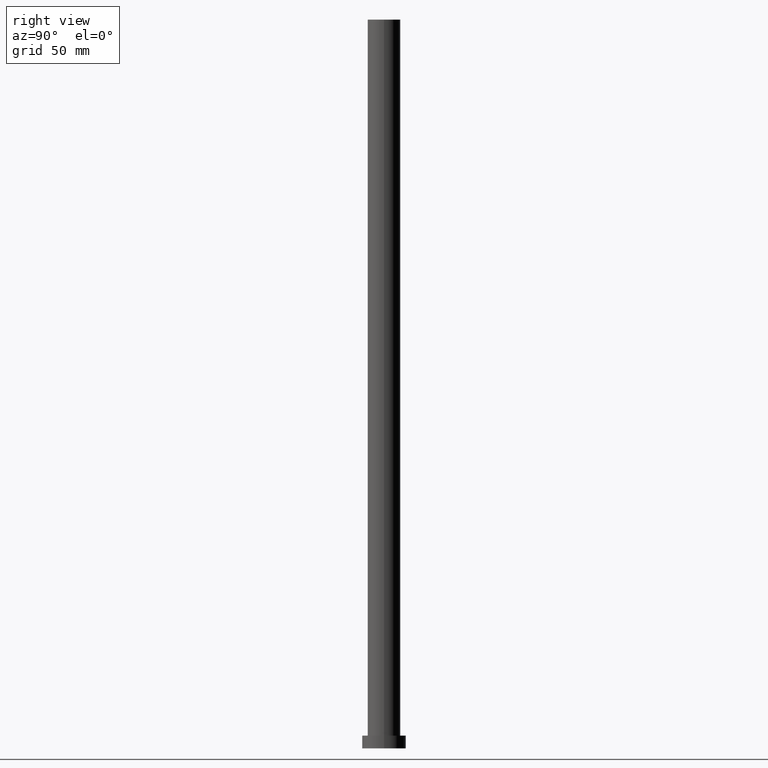
[diagram: clean part render]
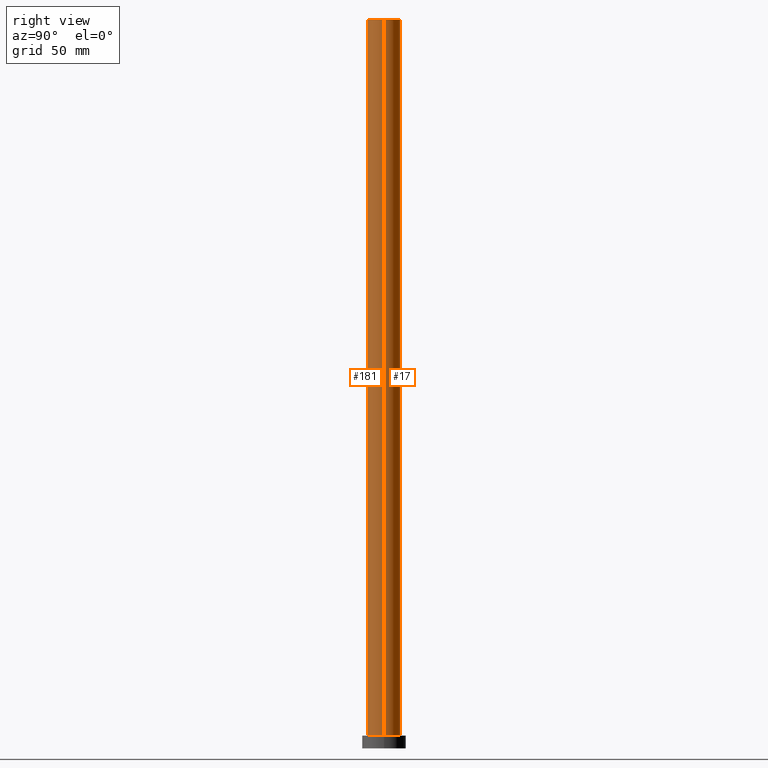
[diagram: same view with one multi-face feature highlighted, each face labeled with its STEP entity id]
A machine part, right view. The highlighted faces form ONE feature: a constant-radius fillet chain: 2 tangent blend faces with common blend radius 9 mm. The faces share edges in the B-rep.
Their STEP definitions:
[1] entity #17 (Cylinder):
#2 = CARTESIAN_POINT ( 'NONE',  ( -9.000000000000000000, 0.000000000000000000, 400.0000000000000000 ) ) ;
#9 = EDGE_CURVE ( 'NONE', #193, #27, #165, .T. ) ;
#10 = CIRCLE ( 'NONE', #50, 9.000000000000000000 ) ;
#17 = ADVANCED_FACE ( 'NONE', ( #170 ), #247, .T. ) ;
#26 = LINE ( 'NONE', #2, #241 ) ;
#27 = VERTEX_POINT ( 'NONE', #213 ) ;
#29 = ORIENTED_EDGE ( 'NONE', *, *, #131, .F. ) ;
#33 = EDGE_CURVE ( 'NONE', #207, #145, #10, .T. ) ;
#47 = CARTESIAN_POINT ( 'NONE',  ( 0.000000000000000000, 0.000000000000000000, 400.0000000000000000 ) ) ;
#48 = DIRECTION ( 'NONE',  ( -0.000000000000000000, -0.000000000000000000, -1.000000000000000000 ) ) ;
#50 = AXIS2_PLACEMENT_3D ( 'NONE', #155, #198, #154 ) ;
#54 = CARTESIAN_POINT ( 'NONE',  ( -9.000000000000000000, 0.000000000000000000, 7.000000000000000000 ) ) ;
#66 = ORIENTED_EDGE ( 'NONE', *, *, #33, .T. ) ;
#74 = ORIENTED_EDGE ( 'NONE', *, *, #9, .F. ) ;
#81 = DIRECTION ( 'NONE',  ( -0.000000000000000000, -0.000000000000000000, -1.000000000000000000 ) ) ;
#123 = AXIS2_PLACEMENT_3D ( 'NONE', #47, #126, #211 ) ;
#126 = DIRECTION ( 'NONE',  ( 0.000000000000000000, 0.000000000000000000, 1.000000000000000000 ) ) ;
#129 = DIRECTION ( 'NONE',  ( -1.000000000000000000, 0.000000000000000000, 0.000000000000000000 ) ) ;
#131 = EDGE_CURVE ( 'NONE', #27, #145, #26, .T. ) ;
#145 = VERTEX_POINT ( 'NONE', #54 ) ;
#149 = CARTESIAN_POINT ( 'NONE',  ( 0.000000000000000000, 0.000000000000000000, 400.0000000000000000 ) ) ;
#151 = CARTESIAN_POINT ( 'NONE',  ( 9.000000000000000000, 1.102182119232617714E-15, 400.0000000000000000 ) ) ;
#154 = DIRECTION ( 'NONE',  ( 1.000000000000000000, 0.000000000000000000, 0.000000000000000000 ) ) ;
#155 = CARTESIAN_POINT ( 'NONE',  ( 0.000000000000000000, 0.000000000000000000, 7.000000000000000000 ) ) ;
#165 = CIRCLE ( 'NONE', #123, 9.000000000000000000 ) ;
#168 = CARTESIAN_POINT ( 'NONE',  ( 9.000000000000000000, 1.102182119232617714E-15, 7.000000000000000000 ) ) ;
#169 = AXIS2_PLACEMENT_3D ( 'NONE', #149, #48, #129 ) ;
#170 = FACE_OUTER_BOUND ( 'NONE', #243, .T. ) ;
#187 = DIRECTION ( 'NONE',  ( -0.000000000000000000, -0.000000000000000000, -1.000000000000000000 ) ) ;
#193 = VERTEX_POINT ( 'NONE', #151 ) ;
#198 = DIRECTION ( 'NONE',  ( 0.000000000000000000, 0.000000000000000000, 1.000000000000000000 ) ) ;
#207 = VERTEX_POINT ( 'NONE', #168 ) ;
#209 = ORIENTED_EDGE ( 'NONE', *, *, #234, .T. ) ;
#211 = DIRECTION ( 'NONE',  ( 1.000000000000000000, 0.000000000000000000, 0.000000000000000000 ) ) ;
#212 = CARTESIAN_POINT ( 'NONE',  ( 9.000000000000000000, 1.102182119232617714E-15, 400.0000000000000000 ) ) ;
#213 = CARTESIAN_POINT ( 'NONE',  ( -9.000000000000000000, 0.000000000000000000, 400.0000000000000000 ) ) ;
#234 = EDGE_CURVE ( 'NONE', #193, #207, #246, .T. ) ;
#241 = VECTOR ( 'NONE', #81, 1000.000000000000000 ) ;
#243 = EDGE_LOOP ( 'NONE', ( #74, #209, #66, #29 ) ) ;
#246 = LINE ( 'NONE', #212, #252 ) ;
#247 = CYLINDRICAL_SURFACE ( 'NONE', #169, 9.000000000000000000 ) ;
#252 = VECTOR ( 'NONE', #187, 1000.000000000000000 ) ;
[2] entity #181 (Cylinder):
#2 = CARTESIAN_POINT ( 'NONE',  ( -9.000000000000000000, 0.000000000000000000, 400.0000000000000000 ) ) ;
#4 = ORIENTED_EDGE ( 'NONE', *, *, #131, .T. ) ;
#5 = CIRCLE ( 'NONE', #94, 9.000000000000000000 ) ;
#11 = CYLINDRICAL_SURFACE ( 'NONE', #232, 9.000000000000000000 ) ;
#20 = DIRECTION ( 'NONE',  ( 1.000000000000000000, 0.000000000000000000, 0.000000000000000000 ) ) ;
#26 = LINE ( 'NONE', #2, #241 ) ;
#27 = VERTEX_POINT ( 'NONE', #213 ) ;
#35 = CIRCLE ( 'NONE', #45, 9.000000000000000000 ) ;
#45 = AXIS2_PLACEMENT_3D ( 'NONE', #120, #204, #73 ) ;
#54 = CARTESIAN_POINT ( 'NONE',  ( -9.000000000000000000, 0.000000000000000000, 7.000000000000000000 ) ) ;
#63 = EDGE_LOOP ( 'NONE', ( #88, #106, #4, #205 ) ) ;
#73 = DIRECTION ( 'NONE',  ( 1.000000000000000000, 0.000000000000000000, 0.000000000000000000 ) ) ;
#81 = DIRECTION ( 'NONE',  ( -0.000000000000000000, -0.000000000000000000, -1.000000000000000000 ) ) ;
#85 = EDGE_CURVE ( 'NONE', #145, #207, #5, .T. ) ;
#88 = ORIENTED_EDGE ( 'NONE', *, *, #234, .F. ) ;
#94 = AXIS2_PLACEMENT_3D ( 'NONE', #180, #178, #20 ) ;
#106 = ORIENTED_EDGE ( 'NONE', *, *, #158, .F. ) ;
#120 = CARTESIAN_POINT ( 'NONE',  ( 0.000000000000000000, 0.000000000000000000, 400.0000000000000000 ) ) ;
#131 = EDGE_CURVE ( 'NONE', #27, #145, #26, .T. ) ;
#145 = VERTEX_POINT ( 'NONE', #54 ) ;
#151 = CARTESIAN_POINT ( 'NONE',  ( 9.000000000000000000, 1.102182119232617714E-15, 400.0000000000000000 ) ) ;
#158 = EDGE_CURVE ( 'NONE', #27, #193, #35, .T. ) ;
#168 = CARTESIAN_POINT ( 'NONE',  ( 9.000000000000000000, 1.102182119232617714E-15, 7.000000000000000000 ) ) ;
#178 = DIRECTION ( 'NONE',  ( 0.000000000000000000, 0.000000000000000000, 1.000000000000000000 ) ) ;
#180 = CARTESIAN_POINT ( 'NONE',  ( 0.000000000000000000, 0.000000000000000000, 7.000000000000000000 ) ) ;
#181 = ADVANCED_FACE ( 'NONE', ( #208 ), #11, .T. ) ;
#187 = DIRECTION ( 'NONE',  ( -0.000000000000000000, -0.000000000000000000, -1.000000000000000000 ) ) ;
#190 = DIRECTION ( 'NONE',  ( -1.000000000000000000, 0.000000000000000000, 0.000000000000000000 ) ) ;
#193 = VERTEX_POINT ( 'NONE', #151 ) ;
#204 = DIRECTION ( 'NONE',  ( 0.000000000000000000, 0.000000000000000000, 1.000000000000000000 ) ) ;
#205 = ORIENTED_EDGE ( 'NONE', *, *, #85, .T. ) ;
#207 = VERTEX_POINT ( 'NONE', #168 ) ;
#208 = FACE_OUTER_BOUND ( 'NONE', #63, .T. ) ;
#212 = CARTESIAN_POINT ( 'NONE',  ( 9.000000000000000000, 1.102182119232617714E-15, 400.0000000000000000 ) ) ;
#213 = CARTESIAN_POINT ( 'NONE',  ( -9.000000000000000000, 0.000000000000000000, 400.0000000000000000 ) ) ;
#215 = DIRECTION ( 'NONE',  ( -0.000000000000000000, -0.000000000000000000, -1.000000000000000000 ) ) ;
#228 = CARTESIAN_POINT ( 'NONE',  ( 0.000000000000000000, 0.000000000000000000, 400.0000000000000000 ) ) ;
#232 = AXIS2_PLACEMENT_3D ( 'NONE', #228, #215, #190 ) ;
#234 = EDGE_CURVE ( 'NONE', #193, #207, #246, .T. ) ;
#241 = VECTOR ( 'NONE', #81, 1000.000000000000000 ) ;
#246 = LINE ( 'NONE', #212, #252 ) ;
#252 = VECTOR ( 'NONE', #187, 1000.000000000000000 ) ;